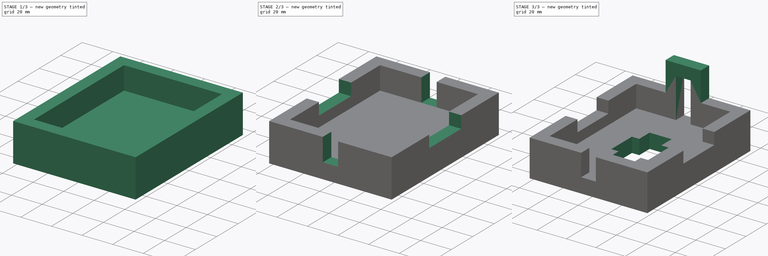
[diagram: build sequence overview — one tinted view per stage of 3, left to right]
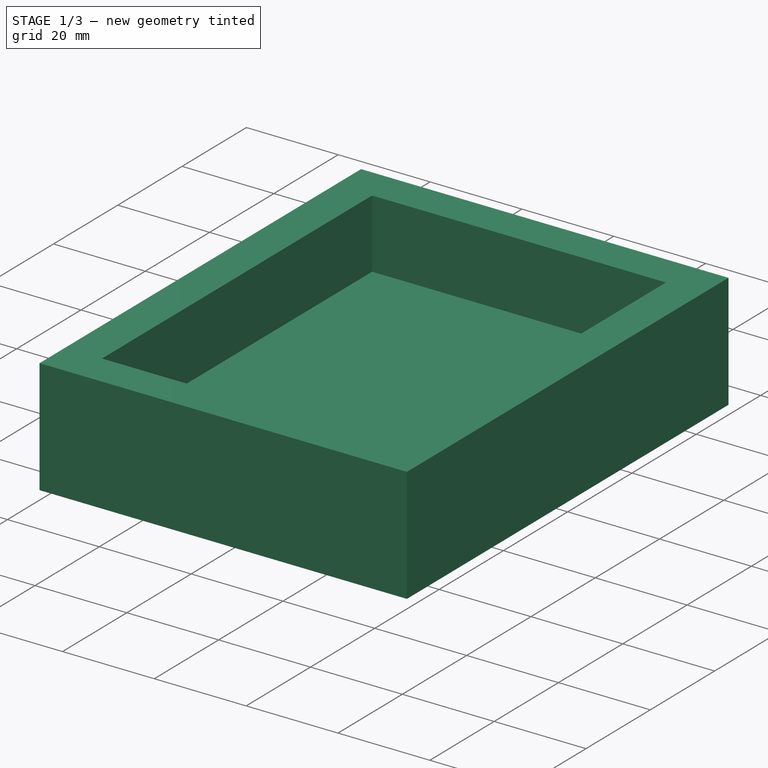
[diagram: stage 1 of 3 — iso view after this stage's code; geometry added in this stage tinted green]
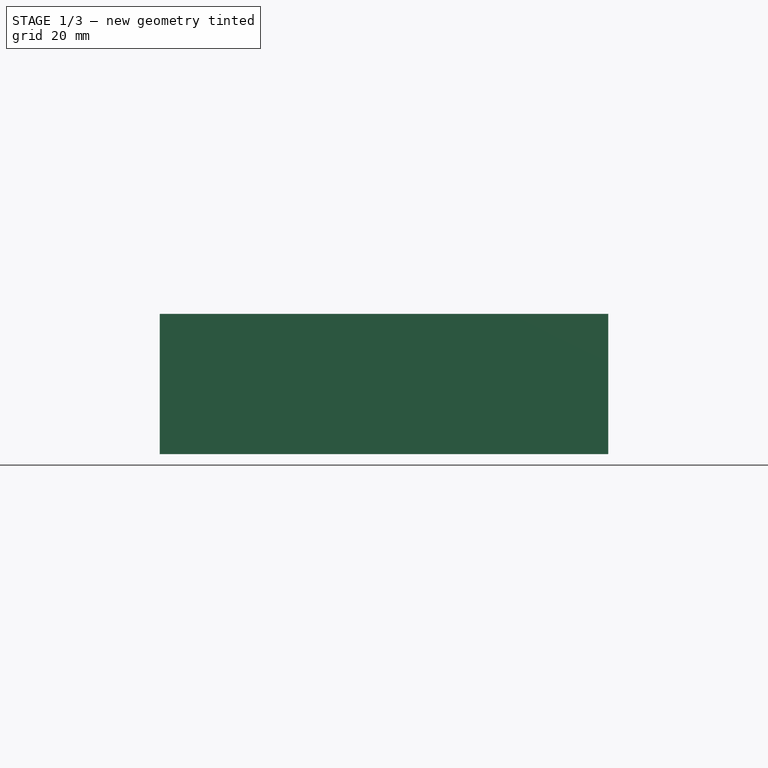
[diagram: stage 1 of 3 — front view after this stage's code; geometry added in this stage tinted green]
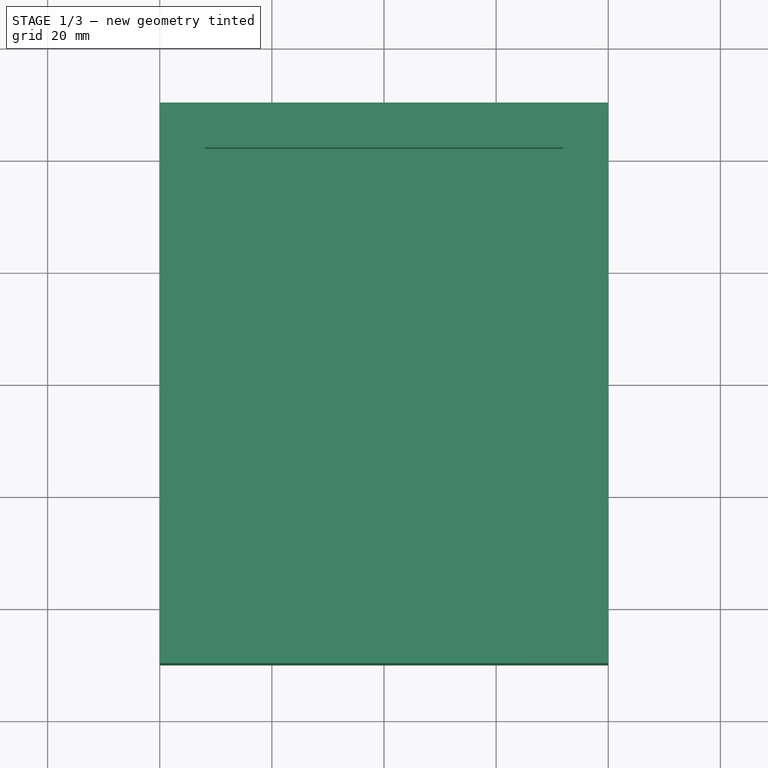
[diagram: stage 1 of 3 — top view after this stage's code; geometry added in this stage tinted green]
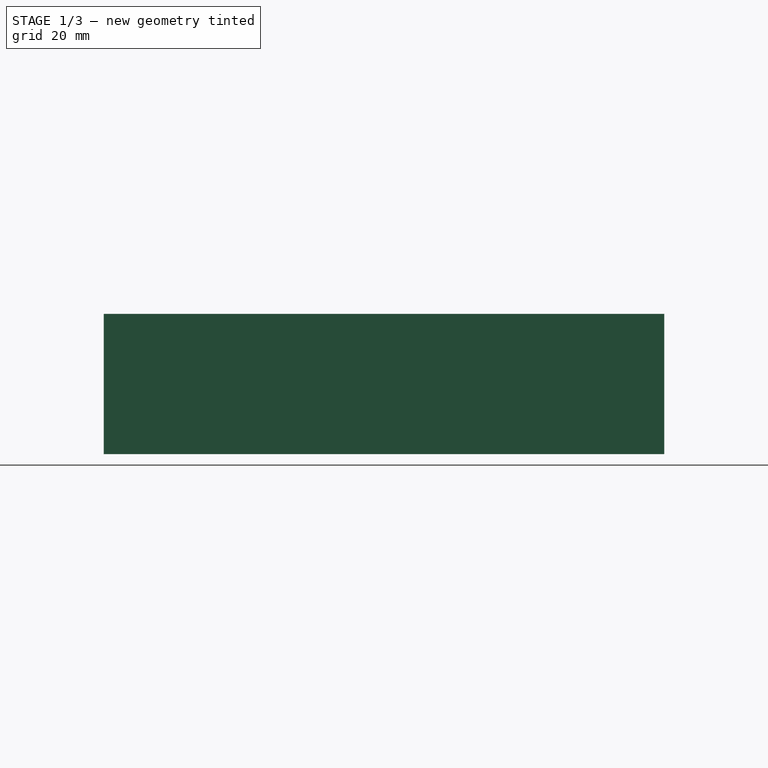
[diagram: stage 1 of 3 — right view after this stage's code; geometry added in this stage tinted green]
FCSTD DOCUMENT  (FreeCAD 0.16R)
Label: Fig 4.6 Final
License: All rights reserved
LicenseURL: http://en.wikipedia.org/wiki/All_rights_reserved
objects: Sketcher::SketchObject×6, PartDesign::Pocket×4, PartDesign::Pad×2
note: 18 computed .brp shape members not serialized (recipe doc carries the construction recipe); baked Part::Feature solids carry a one-line shape summary decoded from their .brp

FEATURE [Sketcher::SketchObject] Sketch
  sketch-geometry (4):
    g0: LineSegment StartX=-40 StartY=-50 StartZ=0 EndX=40 EndY=-50 EndZ=0
    g1: LineSegment StartX=40 StartY=-50 StartZ=0 EndX=40 EndY=50 EndZ=0
    g2: LineSegment StartX=40 StartY=50 StartZ=0 EndX=-40 EndY=50 EndZ=0
    g3: LineSegment StartX=-40 StartY=50 StartZ=0 EndX=-40 EndY=-50 EndZ=0
  constraints (12):
    c: Coincident(g0,g1)
    c: Coincident(g1,g2)
    c: Coincident(g2,g3)
    c: Coincident(g3,g0)
    c: Horizontal(g0)
    c: Horizontal(g2)
    c: Vertical(g1)
    c: Vertical(g3)
    c: DistanceX(g0,g0) = 80
    c: DistanceY(g1,g1) = 100
    c: Symmetric(g0,g0,g-2)
    c: Symmetric(g0,g2,g-1)
FEATURE [PartDesign::Pad] Pad
  Length = 25
  Length2 = 100
  Sketch = -> Sketch
  Type = 0
FEATURE [Sketcher::SketchObject] Sketch001
  ExternalGeometry = -> [Pad]
  Placement = pos=(0,0,25) rot=(0,0,1;0rad)
  Support = -> Pad [Face6]
  sketch-geometry (4):
    g0: LineSegment StartX=-32 StartY=42 StartZ=0 EndX=32 EndY=42 EndZ=0
    g1: LineSegment StartX=32 StartY=42 StartZ=0 EndX=32 EndY=-42 EndZ=0
    g2: LineSegment StartX=32 StartY=-42 StartZ=0 EndX=-32 EndY=-42 EndZ=0
    g3: LineSegment StartX=-32 StartY=-42 StartZ=0 EndX=-32 EndY=42 EndZ=0
  constraints (12):
    c: Coincident(g0,g1)
    c: Coincident(g1,g2)
    c: Coincident(g2,g3)
    c: Coincident(g3,g0)
    c: Horizontal(g0)
    c: Horizontal(g2)
    c: Vertical(g1)
    c: Vertical(g3)
    c: DistanceY(g-4,g2) = 8
    c: DistanceX(g-4,g2) = 8
    c: Symmetric(g2,g1,g-2)
    c: DistanceY(g0,g-3) = 8
FEATURE [PartDesign::Pocket] Pocket
  Length = 15
  Sketch = -> Sketch001
  Type = 0
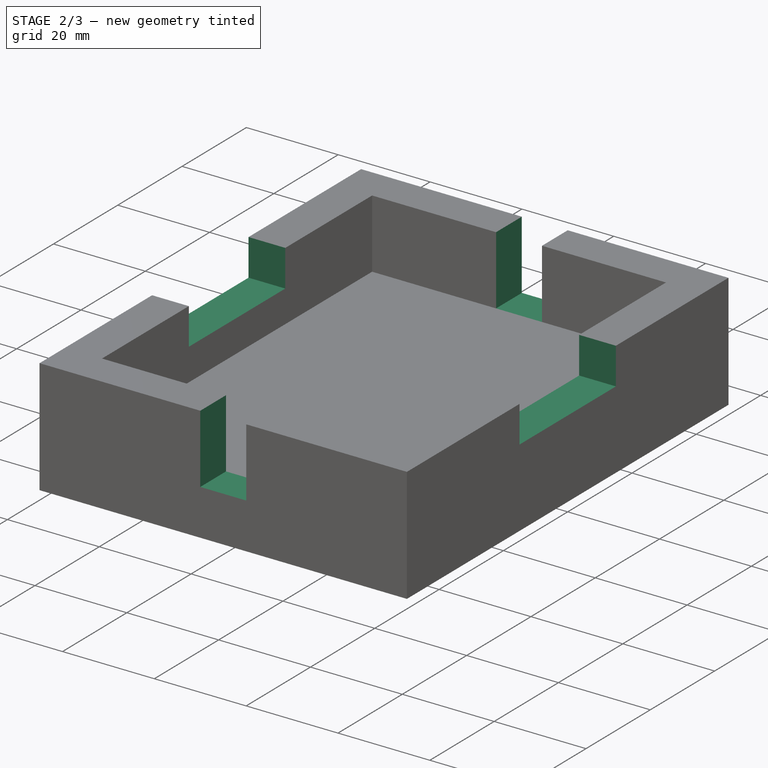
[diagram: stage 2 of 3 — iso view after this stage's code; geometry added in this stage tinted green]
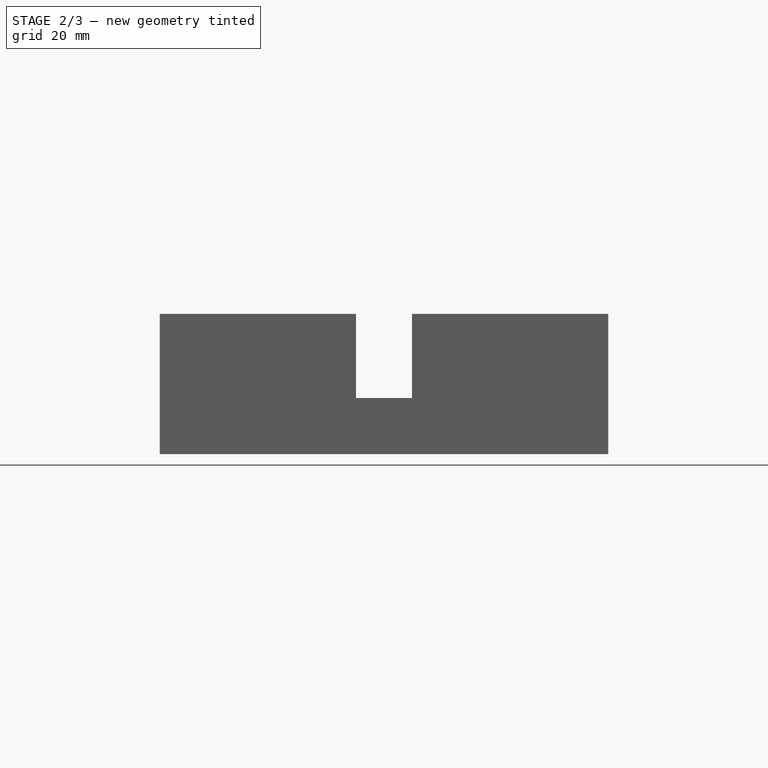
[diagram: stage 2 of 3 — front view after this stage's code; geometry added in this stage tinted green]
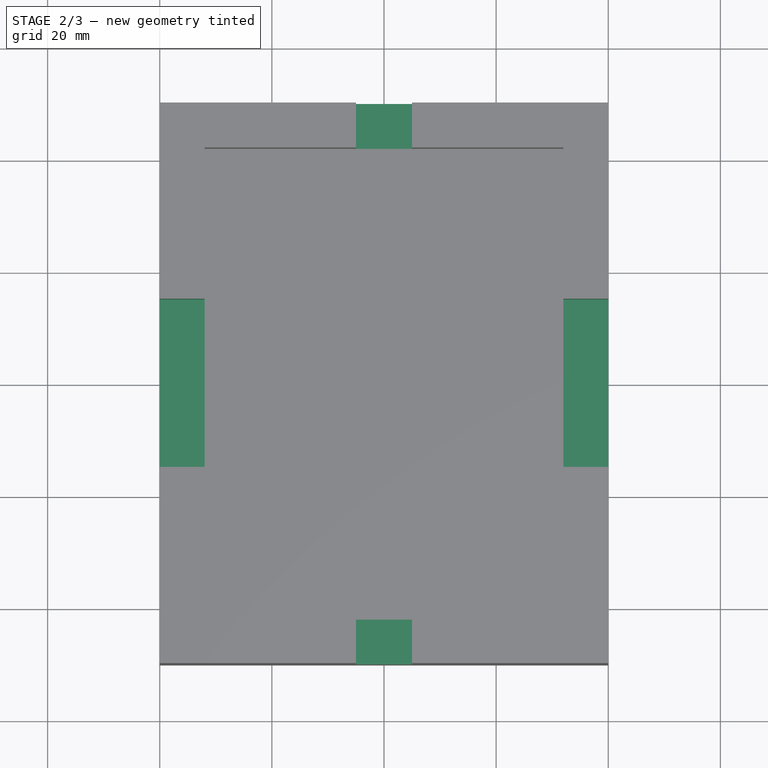
[diagram: stage 2 of 3 — top view after this stage's code; geometry added in this stage tinted green]
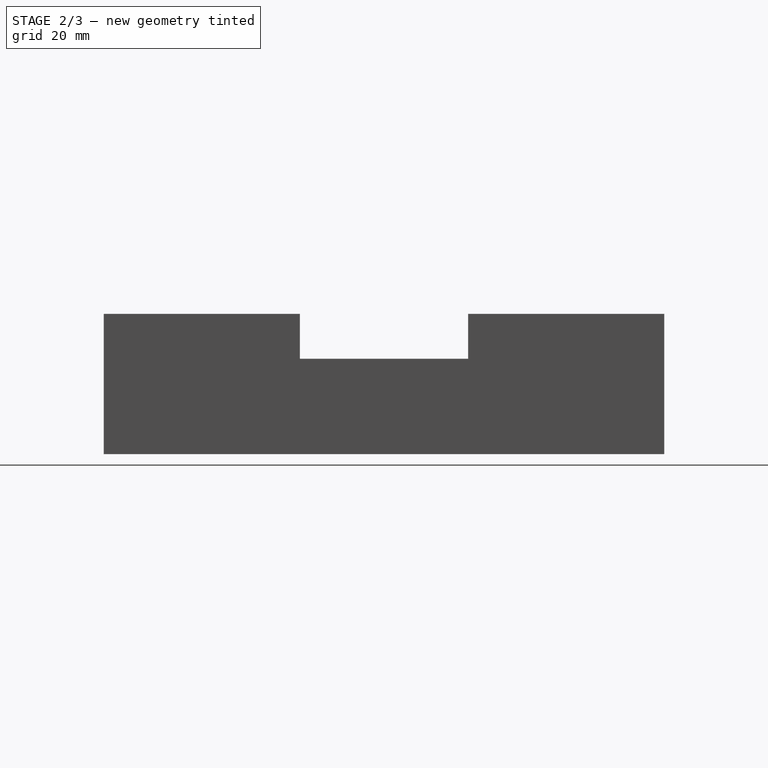
[diagram: stage 2 of 3 — right view after this stage's code; geometry added in this stage tinted green]
FEATURE [Sketcher::SketchObject] Sketch002
  ExternalGeometry = -> [Pocket]
  Placement = pos=(0,-50,0) rot=(1,0,0;1.5708rad)
  Support = -> Pocket [Face1]
  sketch-geometry (4):
    g0: LineSegment StartX=-5 StartY=37.892 StartZ=0 EndX=5 EndY=37.892 EndZ=0
    g1: LineSegment StartX=5 StartY=37.892 StartZ=0 EndX=5 EndY=10 EndZ=0
    g2: LineSegment StartX=5 StartY=10 StartZ=0 EndX=-5 EndY=10 EndZ=0
    g3: LineSegment StartX=-5 StartY=10 StartZ=0 EndX=-5 EndY=37.892 EndZ=0
  constraints (11):
    c: Coincident(g0,g1)
    c: Coincident(g1,g2)
    c: Coincident(g2,g3)
    c: Coincident(g3,g0)
    c: Horizontal(g0)
    c: Horizontal(g2)
    c: Vertical(g1)
    c: Vertical(g3)
    c: DistanceX(g2,g2) = 10
    c: DistanceX(g1,g-3) = 35
    c: DistanceY(g-1,g2) = 10
FEATURE [PartDesign::Pocket] Pocket001
  Length = 10
  Sketch = -> Sketch002
  Type = 1
FEATURE [Sketcher::SketchObject] Sketch003
  ExternalGeometry = -> [Pocket001]
  Placement = pos=(40,0,0) rot=(0.57735,0.57735,0.57735;2.0944rad)
  Support = -> Pocket001 [Face3]
  sketch-geometry (4):
    g0: LineSegment StartX=-15 StartY=35.5447 StartZ=0 EndX=15 EndY=35.5447 EndZ=0
    g1: LineSegment StartX=15 StartY=35.5447 StartZ=0 EndX=15 EndY=17 EndZ=0
    g2: LineSegment StartX=15 StartY=17 StartZ=0 EndX=-15 EndY=17 EndZ=0
    g3: LineSegment StartX=-15 StartY=17 StartZ=0 EndX=-15 EndY=35.5447 EndZ=0
  constraints (12):
    c: Coincident(g0,g1)
    c: Coincident(g1,g2)
    c: Coincident(g2,g3)
    c: Coincident(g3,g0)
    c: Horizontal(g0)
    c: Horizontal(g2)
    c: Vertical(g1)
    c: Vertical(g3)
    c: DistanceY(g-3) = 25
    c: DistanceY(g1,g-3) = 8
    c: DistanceX(g2,g2) = 30
    c: Symmetric(g2,g1,g-2)
FEATURE [PartDesign::Pocket] Pocket002
  Length = 5
  Sketch = -> Sketch003
  Type = 1
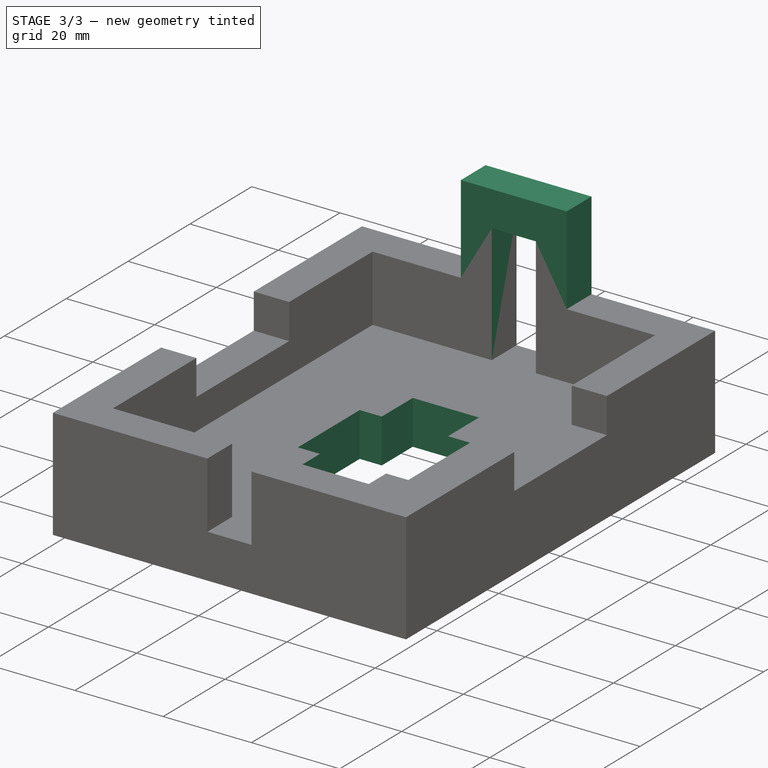
[diagram: stage 3 of 3 — iso view after this stage's code; geometry added in this stage tinted green]
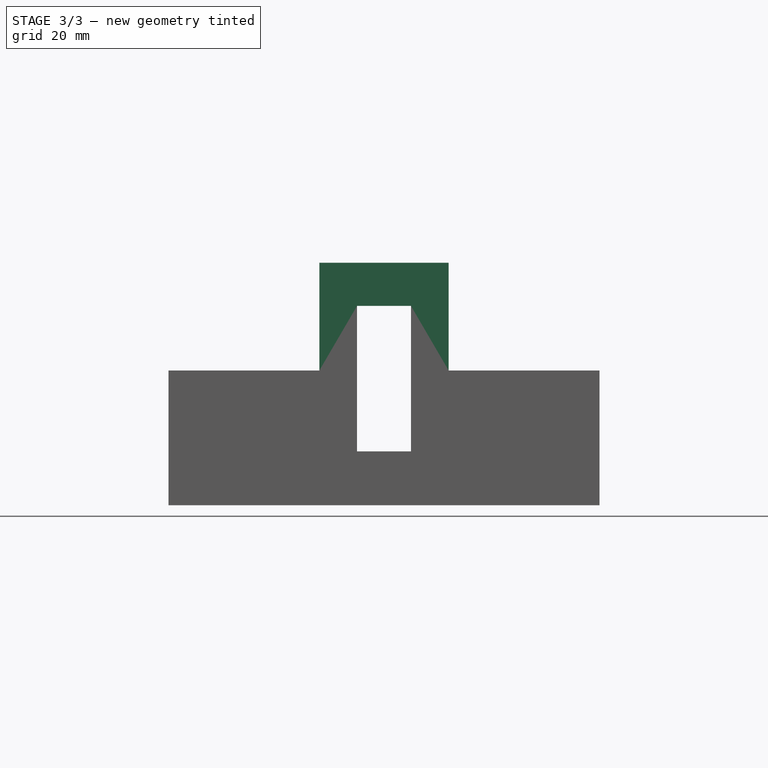
[diagram: stage 3 of 3 — front view after this stage's code; geometry added in this stage tinted green]
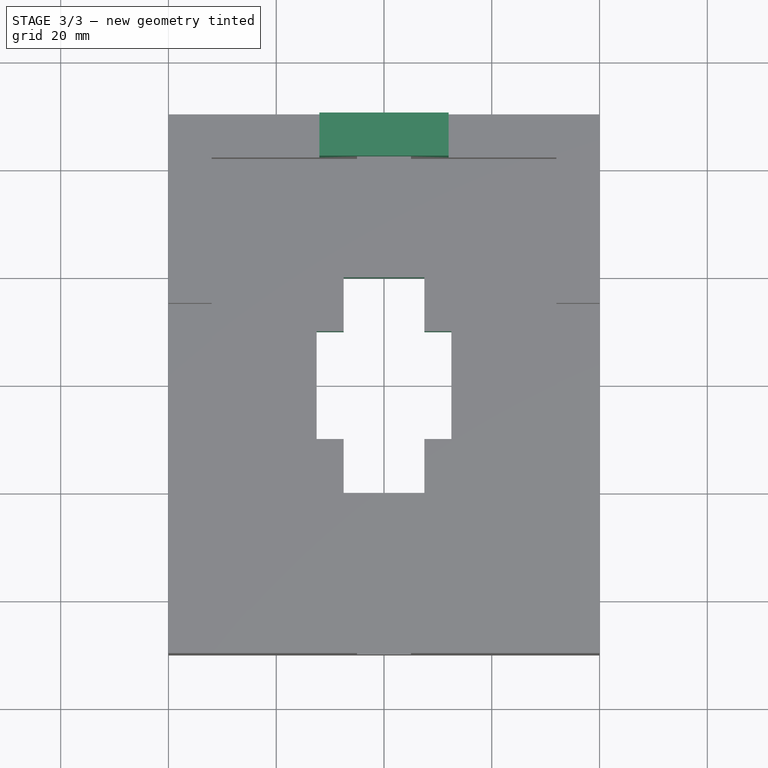
[diagram: stage 3 of 3 — top view after this stage's code; geometry added in this stage tinted green]
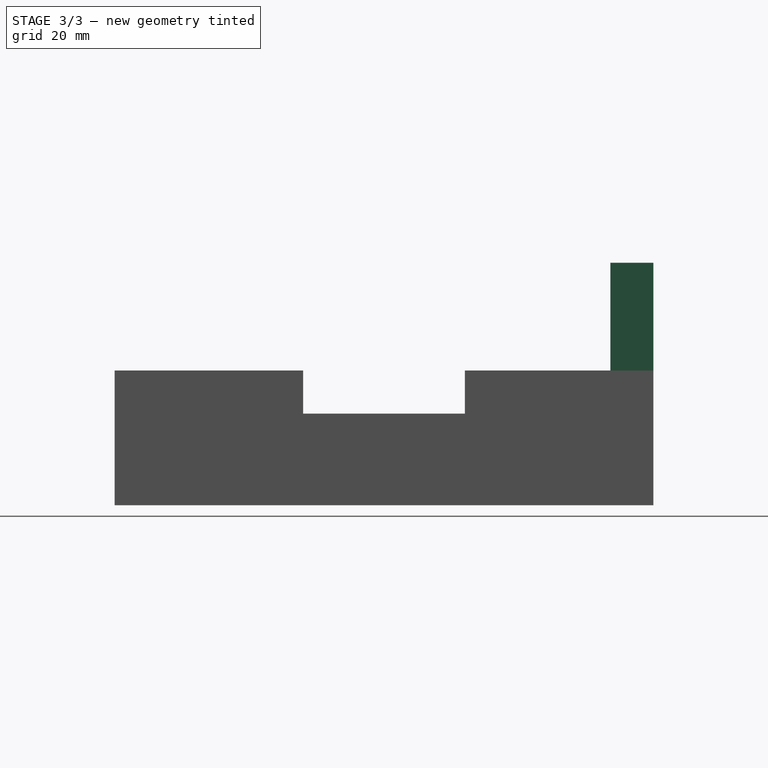
[diagram: stage 3 of 3 — right view after this stage's code; geometry added in this stage tinted green]
FEATURE [Sketcher::SketchObject] Sketch004
  ExternalGeometry = -> [Pocket002]
  Placement = pos=(0,50,0) rot=(0,0.707107,0.707107;3.14159rad)
  Support = -> Pocket002 [Face10]
  sketch-geometry (8):
    g0: LineSegment StartX=12 StartY=25 StartZ=0 EndX=12 EndY=45 EndZ=0
    g1: LineSegment StartX=12 StartY=45 StartZ=0 EndX=-12 EndY=45 EndZ=0
    g2: LineSegment StartX=-12 StartY=45 StartZ=0 EndX=-12 EndY=25 EndZ=0
    g3: LineSegment StartX=-12 StartY=25 StartZ=0 EndX=-5 EndY=25 EndZ=0
    g4: LineSegment StartX=-5 StartY=25 StartZ=0 EndX=-5 EndY=37 EndZ=0
    g5: LineSegment StartX=-5 StartY=37 StartZ=0 EndX=5 EndY=37 EndZ=0
    g6: LineSegment StartX=5 StartY=37 StartZ=0 EndX=5 EndY=25 EndZ=0
    g7: LineSegment StartX=5 StartY=25 StartZ=0 EndX=12 EndY=25 EndZ=0
  constraints (23):
    c: Coincident(g0,g1)
    c: Coincident(g1,g2)
    c: Horizontal(g1)
    c: Vertical(g0)
    c: Vertical(g2)
    c: PointOnObject(g2,g-4)
    c: Coincident(g2,g3)
    c: PointOnObject(g3,g-4)
    c: Coincident(g3,g4)
    c: Vertical(g4)
    c: Coincident(g4,g5)
    c: Horizontal(g5)
    c: Coincident(g5,g6)
    c: Coincident(g6,g-3)
    c: Coincident(g6,g7)
    c: Coincident(g7,g0)
    c: Horizontal(g7)
    c: Vertical(g6)
    c: Coincident(g3,g-4)
    c: DistanceX(g1,g1) = 24
    c: Symmetric(g1,g0,g-2)
    c: DistanceY(g4,g1) = 8
    c: DistanceY(g0,g0) = 20
FEATURE [PartDesign::Pad] Pad001
  Length = 8
  Length2 = 100
  Reversed = true
  Sketch = -> Sketch004
  Type = 0
FEATURE [Sketcher::SketchObject] Sketch005
  Placement = pos=(0,0,10) rot=(0,0,1;0rad)
  Support = -> Pad001 [Face6]
  sketch-geometry (12):
    g0: LineSegment StartX=-7.5 StartY=10 StartZ=0 EndX=-7.5 EndY=20 EndZ=0
    g1: LineSegment StartX=-7.5 StartY=20 StartZ=0 EndX=7.5 EndY=20 EndZ=0
    g2: LineSegment StartX=7.5 StartY=20 StartZ=0 EndX=7.5 EndY=10 EndZ=0
    g3: LineSegment StartX=7.5 StartY=10 StartZ=0 EndX=12.5 EndY=10 EndZ=0
    g4: LineSegment StartX=12.5 StartY=10 StartZ=0 EndX=12.5 EndY=-10 EndZ=0
    g5: LineSegment StartX=12.5 StartY=-10 StartZ=0 EndX=7.5 EndY=-10 EndZ=0
    g6: LineSegment StartX=7.5 StartY=-10 StartZ=0 EndX=7.5 EndY=-20 EndZ=0
    g7: LineSegment StartX=7.5 StartY=-20 StartZ=0 EndX=-7.5 EndY=-20 EndZ=0
    g8: LineSegment StartX=-7.5 StartY=-20 StartZ=0 EndX=-7.5 EndY=-10 EndZ=0
    g9: LineSegment StartX=-7.5 StartY=-10 StartZ=0 EndX=-12.5 EndY=-10 EndZ=0
    g10: LineSegment StartX=-12.5 StartY=-10 StartZ=0 EndX=-12.5 EndY=10 EndZ=0
    g11: LineSegment StartX=-12.5 StartY=10 StartZ=0 EndX=-7.5 EndY=10 EndZ=0
  constraints (39):
    c: Coincident(g0,g1)
    c: Coincident(g1,g2)
    c: Vertical(g2)
    c: Coincident(g2,g3)
    c: Coincident(g3,g4)
    c: Vertical(g4)
    c: Coincident(g4,g5)
    c: Horizontal(g5)
    c: Coincident(g5,g6)
    c: Vertical(g6)
    c: Coincident(g6,g7)
    c: Coincident(g7,g8)
    c: Vertical(g8)
    c: Coincident(g8,g9)
    c: Coincident(g9,g10)
    c: Vertical(g10)
    c: Coincident(g10,g11)
    c: Coincident(g11,g0)
    c: Horizontal(g11)
    c: Horizontal(g9)
    c: Horizontal(g3)
    c: Horizontal(g1)
    c: Vertical(g0)
    c: DistanceX(g1,g1) = 15
    c: DistanceX(g7,g7) = 15
    c: DistanceY(g4,g4) = 20
    c: Equal(g4,g10)
    c: Equal(g1,g7)
    c: Equal(g11,g9)
    c: Equal(g9,g5)
    c: Equal(g5,g3)
    c: DistanceX(g2,g3) = 5
    c: Symmetric(g6,g7,g-2)
    c: Symmetric(g8,g0,g-1)
    c: Symmetric(g4,g3,g-1)
    c: Equal(g0,g2)
    c: Equal(g2,g6)
    c: Equal(g6,g8)
    c: DistanceY(g0,g0) = 10
FEATURE [PartDesign::Pocket] Pocket003
  Length = 10
  Sketch = -> Sketch005
  Type = 0
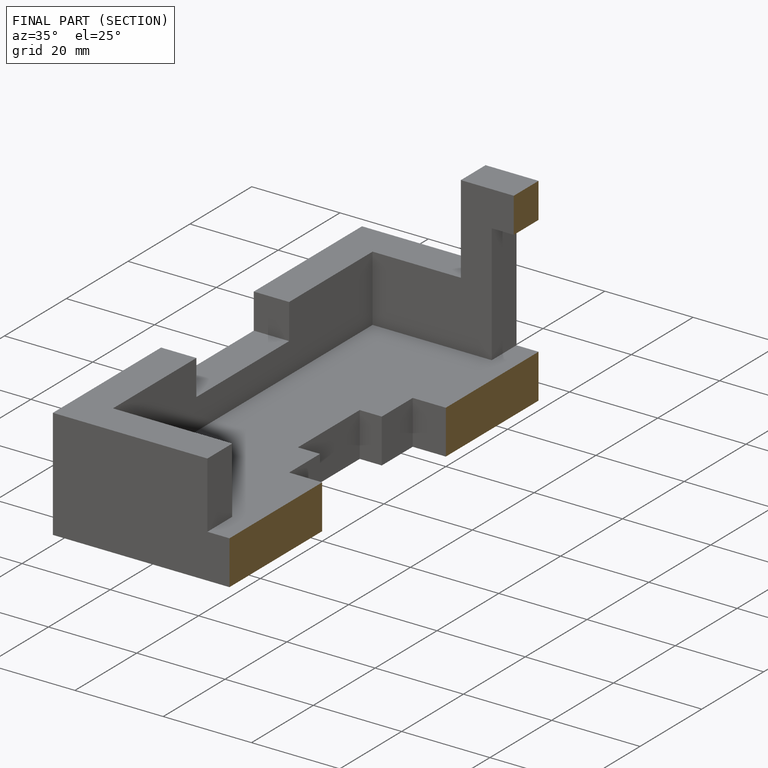
[diagram: finished part — half-section view (interior)]
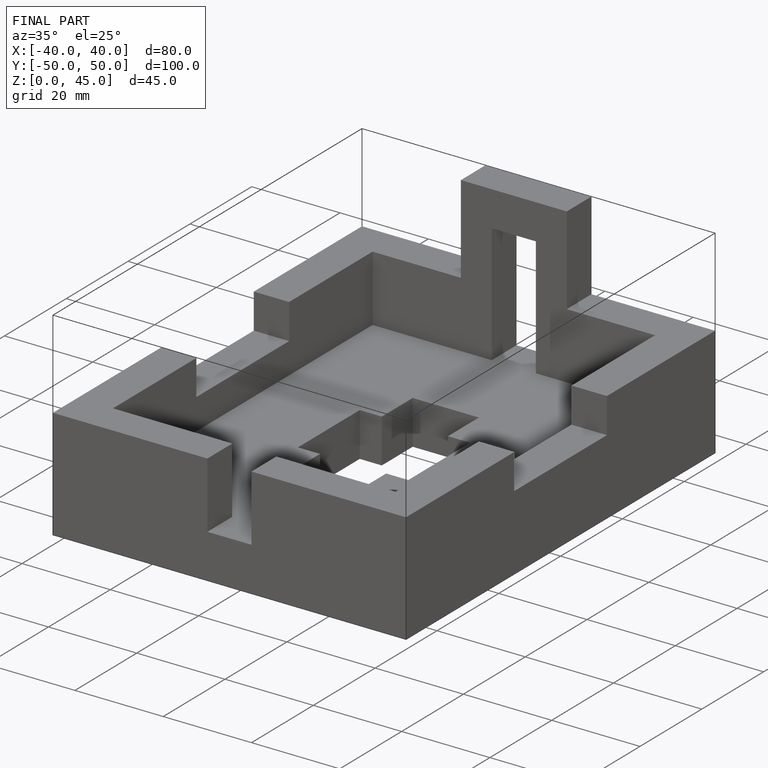
[diagram: finished part — iso view with bounding-box wireframe]
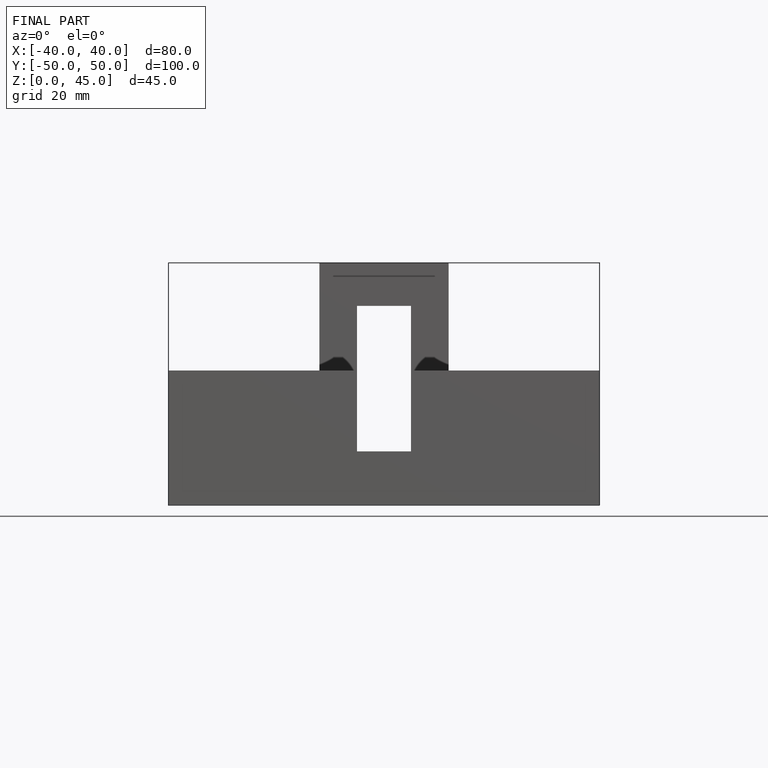
[diagram: finished part — front view with bounding-box wireframe]
